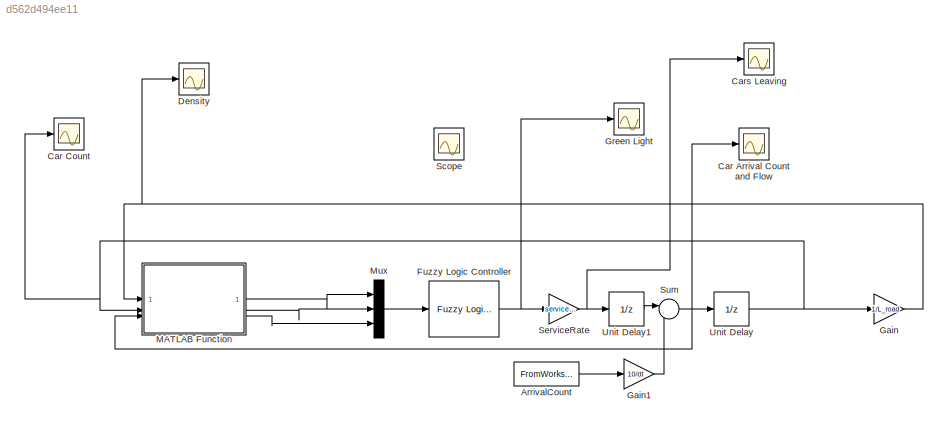
MODEL slx_d562d494ee11
KIND model
CONFIG AbsTol = auto
CONFIG EnableMultiTasking = off
CONFIG FixedStep = auto
CONFIG MaxStep = auto
CONFIG MinStep = auto
CONFIG RelTol = 1e-3
CONFIG SampleTimeConstraint = Unconstrained
CONFIG SolverName = VariableStepAuto
CONFIG StartTime = 0.0
CONFIG StopTime = 60.0
BLOCK [FromWorkspace] ArrivalCount
  NameLocation = top
  VariableName = tsArr1
BLOCK [Scope] Car Arrival Count and Flow
  Floating = off
  NumInputPorts = 1
  ScopeSpecificationString = Simulink.scopes.TimeScopeBlockCfg('CurrentConfiguration', extmgr.ConfigurationSet(extmgr.Configuration('Core','General UI',true),extmgr.Configuration('Core','Source UI',true),extmgr.Configuration('Sources','WiredSimulink',true,'DataLoggingVariableName','ScopeData2'),extmgr.Configuration('Visuals','Time Domain',true,'SerializedDisplays',{struct('MinYLimReal','-10.00000','MaxYLimReal','90.00000','YL...<+1494ch>
BLOCK [Scope] Car Count
  Floating = off
  NumInputPorts = 1
  ScopeSpecificationString = Simulink.scopes.TimeScopeBlockCfg('CurrentConfiguration', extmgr.ConfigurationSet(extmgr.Configuration('Core','General UI',true),extmgr.Configuration('Core','Source UI',true),extmgr.Configuration('Sources','WiredSimulink',true,'DataLoggingVariableName','ScopeData4'),extmgr.Configuration('Visuals','Time Domain',true,'SerializedDisplays',{struct('MinYLimReal','-27.01535','MaxYLimReal','72.98465','YL...<+1496ch>
BLOCK [Scope] Cars Leaving
  Floating = off
  NumInputPorts = 1
  ScopeSpecificationString = Simulink.scopes.TimeScopeBlockCfg('CurrentConfiguration', extmgr.ConfigurationSet(extmgr.Configuration('Core','General UI',true),extmgr.Configuration('Core','Source UI',true),extmgr.Configuration('Sources','WiredSimulink',true,'DataLoggingVariableName','ScopeData3'),extmgr.Configuration('Visuals','Time Domain',true,'SerializedDisplays',{struct('MinYLimReal','16.77401','MaxYLimReal','17.04217','YLa...<+1498ch>
BLOCK [Scope] Density
  Floating = off
  NumInputPorts = 1
  ScopeSpecificationString = Simulink.scopes.TimeScopeBlockCfg('CurrentConfiguration', extmgr.ConfigurationSet(extmgr.Configuration('Core','General UI',true),extmgr.Configuration('Core','Source UI',true),extmgr.Configuration('Sources','WiredSimulink',true,'DataLoggingVariableName','ScopeData5'),extmgr.Configuration('Visuals','Time Domain',true,'SerializedDisplays',{struct('MinYLimReal','-5.40307','MaxYLimReal','14.59693','YLa...<+1489ch>
BLOCK [Reference] Fuzzy Logic Controller  REF=fuzblock/Fuzzy Logic   (lib defined in mdl_858b3b3e7478)
Controller
  SourceBlock = fuzblock/Fuzzy Logic \nController
  SourceType = Fuzzy Inference System
BLOCK [Gain] Gain
  Gain = 1/L_road
BLOCK [Gain] Gain1
  Gain = 10/dt
BLOCK [Scope] Green Light 
  Floating = off
  NumInputPorts = 1
  ScopeSpecificationString = Simulink.scopes.TimeScopeBlockCfg('CurrentConfiguration', extmgr.ConfigurationSet(extmgr.Configuration('Core','General UI',true),extmgr.Configuration('Core','Source UI',true),extmgr.Configuration('Sources','WiredSimulink',true,'DataLoggingVariableName','ScopeData1'),extmgr.Configuration('Visuals','Time Domain',true,'SerializedDisplays',{struct('MinYLimReal','16.77401','MaxYLimReal','17.04217','YLa...<+1510ch>
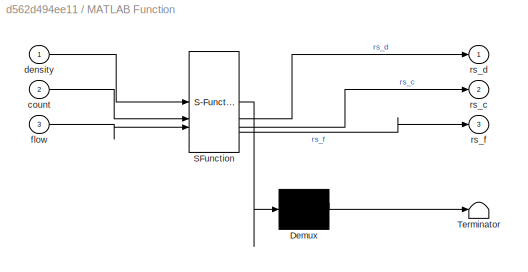
BLOCK [SubSystem] MATLAB Function
  ErrorFcn = Stateflow.Translate.translate
  PermitHierarchicalResolution = ExplicitOnly
  SFBlockType = MATLAB Function
  TreatAsAtomicUnit = on
BLOCK [Demux] MATLAB Function/ Demux 
  Outputs = 1
BLOCK [S-Function] MATLAB Function/ SFunction 
  EnableBusSupport = on
  FunctionName = sf_sfun
  PortCounts = [3 4]
  SFcnIsStateOwnerBlock = off
  SFunctionDeploymentMode = off
  Tag = Stateflow S-Function 2
BLOCK [Terminator] MATLAB Function/ Terminator 
BLOCK [Inport] MATLAB Function/count
  Port = 2
BLOCK [Inport] MATLAB Function/density
BLOCK [Inport] MATLAB Function/flow
  Port = 3
BLOCK [Outport] MATLAB Function/rs_c
  Port = 2
BLOCK [Outport] MATLAB Function/rs_d
BLOCK [Outport] MATLAB Function/rs_f
  Port = 3
BLOCK [Mux] Mux
  DisplayOption = bar
  Inputs = 3
BLOCK [Scope] Scope
  Floating = off
  IOType = viewer
  NumInputPorts = 1
  ScopeSpecificationString = Simulink.scopes.TimeScopeBlockCfg('CurrentConfiguration', extmgr.ConfigurationSet(extmgr.Configuration('Core','General UI',true),extmgr.Configuration('Core','Source UI',true),extmgr.Configuration('Sources','WiredSimulink',true),extmgr.Configuration('Visuals','Time Domain',true,'SerializedDisplays',{struct('MinYLimReal','-10.00000','MaxYLimReal','10.00000','YLabelReal','','MinYLimMag','0.00000','Ma...<+1415ch>
BLOCK [Gain] ServiceRate
  Gain = serviceRate
BLOCK [Sum] Sum
  Inputs = |-+
BLOCK [UnitDelay] Unit Delay
  HasFrameUpgradeWarning = on
BLOCK [UnitDelay] Unit Delay1
  HasFrameUpgradeWarning = on
  SampleTime = -1
LINE ArrivalCount:1 -> Gain1:1
NET Fuzzy Logic Controller:1 -> Green Light :1, ServiceRate:1
NET Gain1:1 -> Car Arrival Count and Flow:1, MATLAB Function:3, Sum:2
NET Gain:1 -> Density:1, MATLAB Function:1
LINE MATLAB Function:1 -> Mux:1
LINE MATLAB Function:2 -> Mux:2
LINE MATLAB Function:3 -> Mux:3
LINE Mux:1 -> Fuzzy Logic Controller:1
NET ServiceRate:1 -> Cars Leaving:1, Unit Delay1:1
LINE Sum:1 -> Unit Delay:1
LINE Unit Delay1:1 -> Sum:1
NET Unit Delay:1 -> Car Count:1, Gain:1, MATLAB Function:2
note: NET lines group one-source signal fan-out (src -> all destinations, sorted); 1:1 wires keep LINE
CHART MATLAB Function states=1 transitions=1
  STATE_LABEL 'eML_blk_kernel()'
  STATE_LABEL 'SCRIPT:\nfunction [rs_d, rs_c, rs_f] = roughset(density, count, flow)\n%#codegen\n% Density discretization\nif density <= 0.2\n  rs_d = int8(1);\nelseif density <= 0.5\n  rs_d = int8(2);\nelseif density <= 0.8\n  rs_d = int8(3);\nelse\n  rs_d = int8(4);\nend\n\n% Count discretization\nif count <= 10\n  rs_c = int8(1);\nelseif count <= 20\n  rs_c = int8(2);\nelseif count <= 30\n  rs_c = int8(3);\nelse\n  rs_c = int8(4);...<+163ch>'
CHART  states=0 transitions=0
